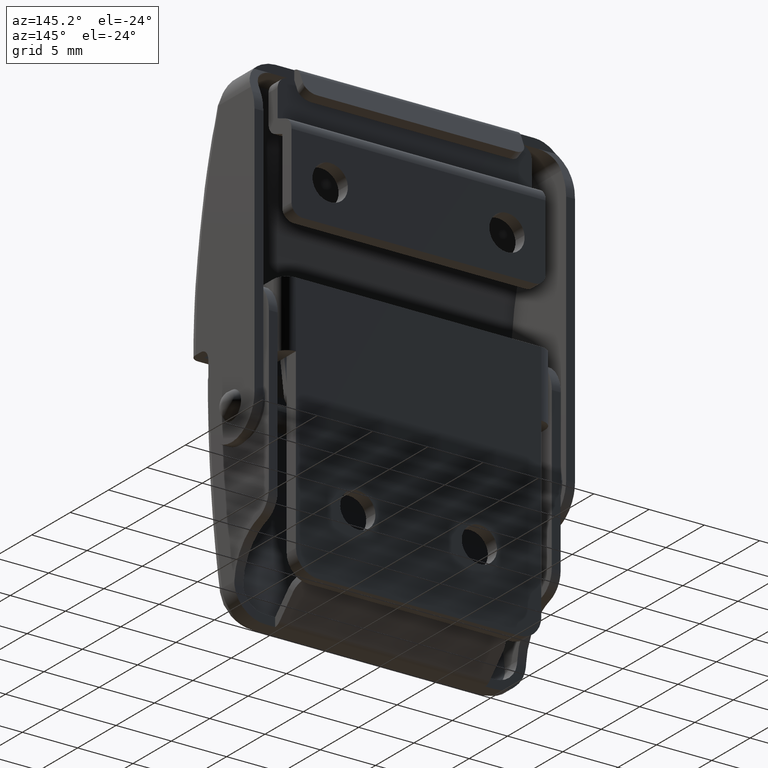
[diagram: clean part render]
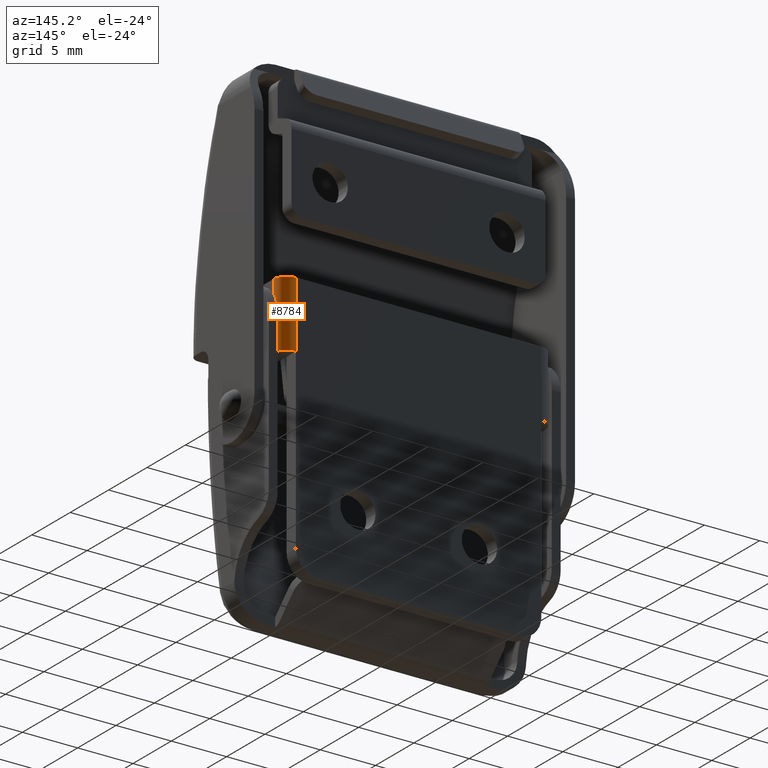
[diagram: same view with one face highlighted and labeled with its STEP entity id]
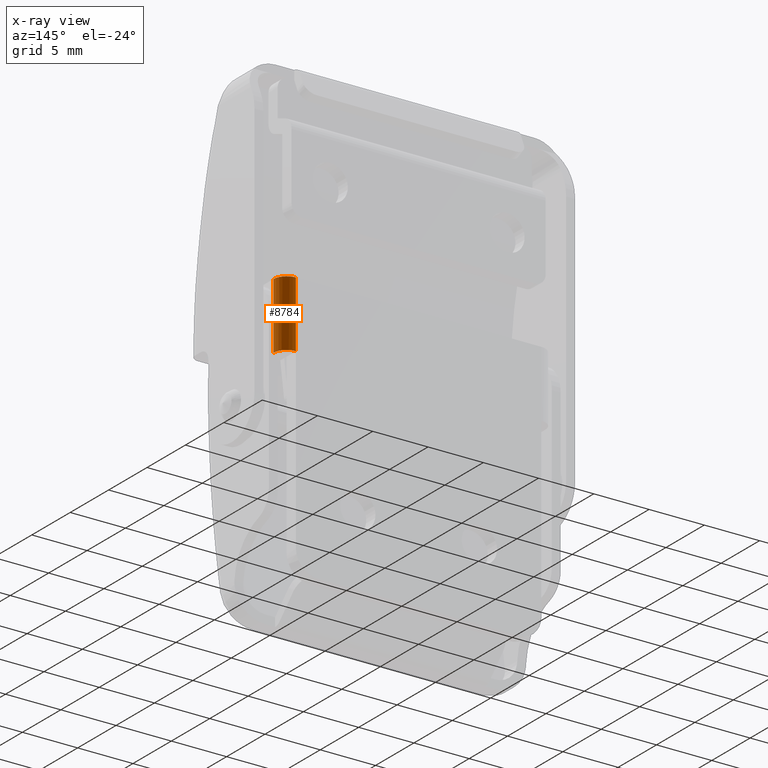
[diagram: x-ray of the same camera — body ghosted, the highlighted face saturated]
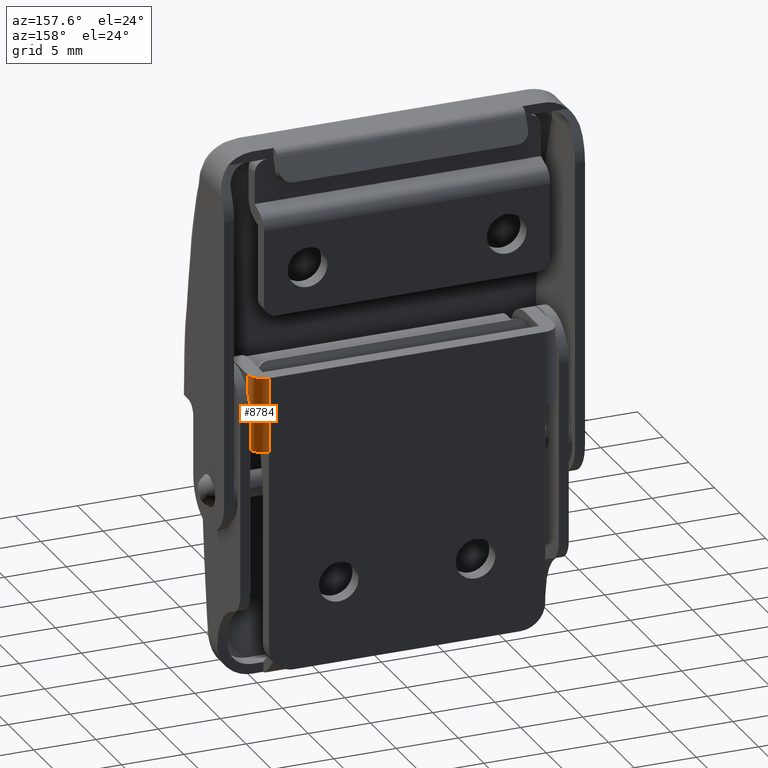
[diagram: same view with one face highlighted and labeled with its STEP entity id]
A machine part, auxiliary view. The second image highlights one B-rep face of the part: STEP entity #8784.
The next image is the same camera in x-ray: the body ghosted, the highlighted face saturated — about 0% of this face is hidden behind the body in this view.
A second angle (auxiliary view) of the same face is appended — the face is thin or edge-on in the first view.
In plain terms, the highlighted face is a freeform B-spline surface patch.
Its self-contained STEP definition (entity closure, byte-faithful):
#8724=CARTESIAN_POINT('',(12.299588789967890,-1.231412337969448,17.649999999972291));
#8725=CARTESIAN_POINT('',(12.299588789967890,-1.231412337969448,11.346249999970761));
#8726=CARTESIAN_POINT('',(12.334190702533324,0.089981391634861,17.649999999972287));
#8727=CARTESIAN_POINT('',(12.334190702533324,0.089981391634861,11.346249999970762));
#8728=CARTESIAN_POINT('',(11.015616241987884,-0.002970601286574,17.649999999972291));
#8729=CARTESIAN_POINT('',(11.015616241987884,-0.002970601286574,11.346249999970759));
#8737=(BOUNDED_SURFACE()B_SPLINE_SURFACE(1,2,((#8724,#8726,#8728),(#8725,#8727,#8729)),.UNSPECIFIED.,.F.,.F.,.U.)B_SPLINE_SURFACE_WITH_KNOTS((2,2),(3,3),(0.0,6.303750000001528),(0.0,2.125370413799328),.UNSPECIFIED.)GEOMETRIC_REPRESENTATION_ITEM()RATIONAL_B_SPLINE_SURFACE(((1.0,0.670944284812314,0.996392526645908),(1.0,0.670944284812314,0.996392526645908)))REPRESENTATION_ITEM('')SURFACE());
#8738=CARTESIAN_POINT('',(12.299999999997199,-1.200000000000000,17.499999999972250));
#8739=VERTEX_POINT('',#8738);
#8740=CARTESIAN_POINT('',(11.099999999997220,0.0,17.499999999970800));
#8741=VERTEX_POINT('',#8740);
#8742=CARTESIAN_POINT('',(12.299999999997221,-1.200000000000000,17.499999999972250));
#8743=CARTESIAN_POINT('',(12.299999999997219,0.0,17.499999999970825));
#8744=CARTESIAN_POINT('',(11.099999999997220,0.0,17.499999999970822));
#8752=(BOUNDED_CURVE()B_SPLINE_CURVE(2,(#8742,#8743,#8744),.UNSPECIFIED.,.F.,.U.)CURVE()GEOMETRIC_REPRESENTATION_ITEM()QUASI_UNIFORM_CURVE()RATIONAL_B_SPLINE_CURVE((1.0,0.707106781186547,1.0))REPRESENTATION_ITEM(''));
#8753=EDGE_CURVE('',#8739,#8741,#8752,.T.);
#8754=ORIENTED_EDGE('',*,*,#8753,.F.);
#8755=CARTESIAN_POINT('',(12.299999999997199,-1.200000000000000,11.499999999972220));
#8756=VERTEX_POINT('',#8755);
#8757=CARTESIAN_POINT('',(12.299999999997199,-1.200000000000000,11.499999999972220));
#8758=CARTESIAN_POINT('',(12.299999999997199,-1.200000000000000,17.499999999972250));
#8759=QUASI_UNIFORM_CURVE('',1,(#8757,#8758),.UNSPECIFIED.,.F.,.U.);
#8760=EDGE_CURVE('',#8756,#8739,#8759,.T.);
#8761=ORIENTED_EDGE('',*,*,#8760,.F.);
#8762=CARTESIAN_POINT('',(11.099999999998561,0.0,11.499999999970800));
#8763=VERTEX_POINT('',#8762);
#8764=CARTESIAN_POINT('',(11.099999999998561,0.0,11.499999999970800));
#8765=CARTESIAN_POINT('',(12.299999999997219,0.0,11.499999999970788));
#8766=CARTESIAN_POINT('',(12.299999999997221,-1.200000000000000,11.499999999972220));
#8774=(BOUNDED_CURVE()B_SPLINE_CURVE(2,(#8764,#8765,#8766),.UNSPECIFIED.,.F.,.U.)CURVE()GEOMETRIC_REPRESENTATION_ITEM()QUASI_UNIFORM_CURVE()RATIONAL_B_SPLINE_CURVE((1.0,0.707106781186547,1.0))REPRESENTATION_ITEM(''));
#8775=EDGE_CURVE('',#8763,#8756,#8774,.T.);
#8776=ORIENTED_EDGE('',*,*,#8775,.F.);
#8777=CARTESIAN_POINT('',(11.099999999997220,0.0,17.499999999970800));
#8778=CARTESIAN_POINT('',(11.099999999998561,0.0,11.499999999970800));
#8779=QUASI_UNIFORM_CURVE('',1,(#8777,#8778),.UNSPECIFIED.,.F.,.U.);
#8780=EDGE_CURVE('',#8741,#8763,#8779,.T.);
#8781=ORIENTED_EDGE('',*,*,#8780,.F.);
#8782=EDGE_LOOP('',(#8754,#8761,#8776,#8781));
#8783=FACE_OUTER_BOUND('',#8782,.T.);
#8784=ADVANCED_FACE('',(#8783),#8737,.T.);